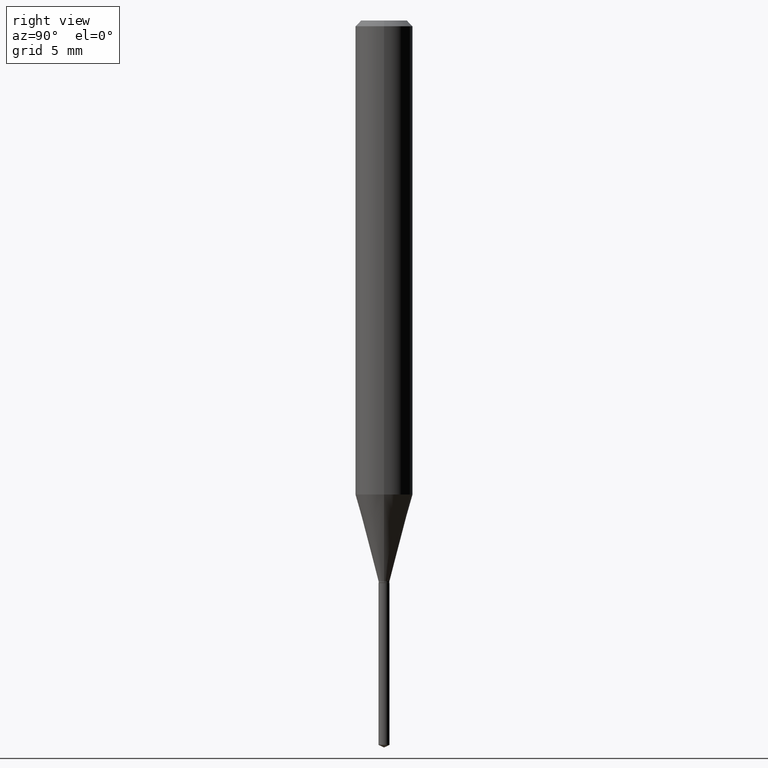
[diagram: clean part render]
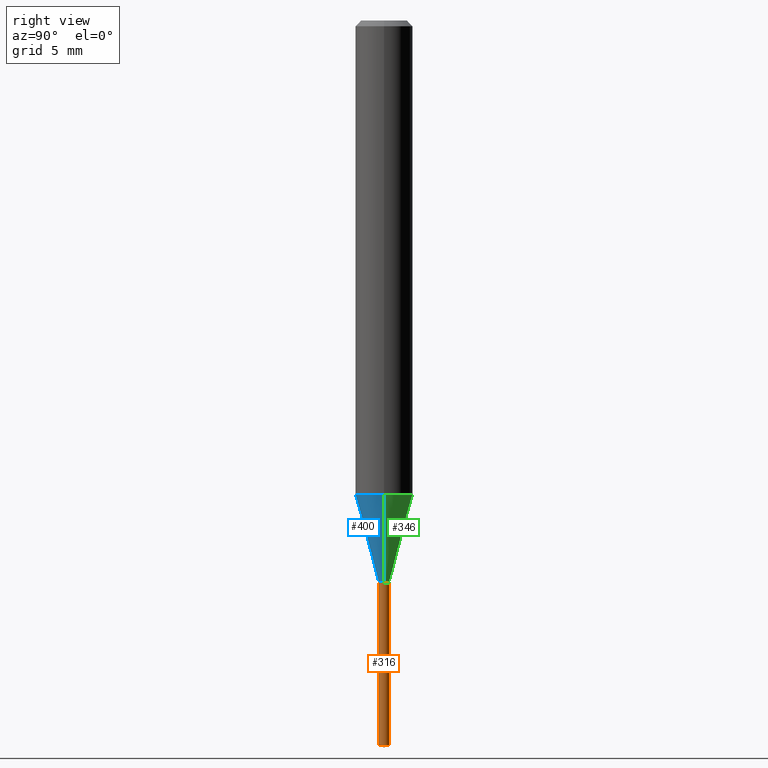
[diagram: same view with three faces highlighted in distinct colors, each labeled with its STEP entity id]
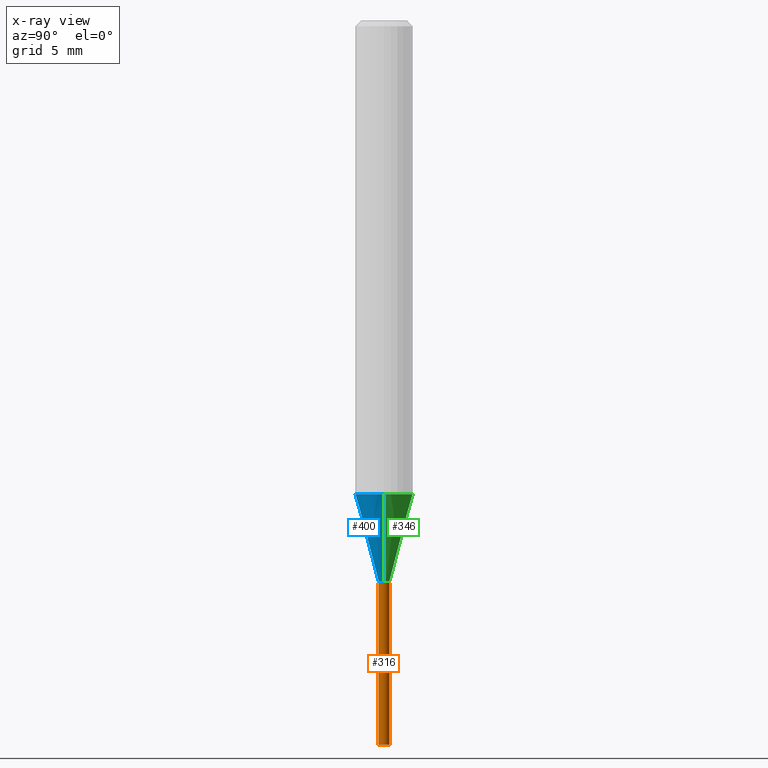
[diagram: x-ray of the same camera — body ghosted, the three highlighted faces saturated]
A machine part, right view with three faces highlighted in distinct colors.
The next image is the same camera in x-ray (body ghosted, the three faces saturated) — at least one of them is partly hidden behind the body in this view.
Their STEP definitions:

[orange] entity #316 — the highlighted cylindrical surface (edge-blend (fillet) strip) has radius 0.2845 mm, axis along (-0, 0, 1).
#19 = VECTOR ( 'NONE', #213, 39.37007874015748143 ) ;
#31 = EDGE_CURVE ( 'NONE', #335, #183, #285, .T. ) ;
#36 = ORIENTED_EDGE ( 'NONE', *, *, #144, .F. ) ;
#56 = CARTESIAN_POINT ( 'NONE',  ( -7.820918199004973468E-17, -0.01120000000000520753, -1.490877354228663965 ) ) ;
#119 = VERTEX_POINT ( 'NONE', #425 ) ;
#128 = CARTESIAN_POINT ( 'NONE',  ( -7.820918199005786981E-17, -0.01120000000000404179, -1.157499999999999973 ) ) ;
#130 = AXIS2_PLACEMENT_3D ( 'NONE', #258, #253, #408 ) ;
#144 = EDGE_CURVE ( 'NONE', #190, #335, #286, .T. ) ;
#155 = ORIENTED_EDGE ( 'NONE', *, *, #417, .T. ) ;
#160 = CARTESIAN_POINT ( 'NONE',  ( 2.830630143159295633E-29, -4.041389649710940900E-15, -1.157499999999999973 ) ) ;
#181 = ORIENTED_EDGE ( 'NONE', *, *, #31, .F. ) ;
#183 = VERTEX_POINT ( 'NONE', #283 ) ;
#184 = CARTESIAN_POINT ( 'NONE',  ( 7.958078640515952039E-17, 0.01119999999999595798, -1.157499999999999973 ) ) ;
#186 = AXIS2_PLACEMENT_3D ( 'NONE', #395, #311, #244 ) ;
#187 = CYLINDRICAL_SURFACE ( 'NONE', #130, 0.01119999999999999989 ) ;
#190 = VERTEX_POINT ( 'NONE', #56 ) ;
#198 = DIRECTION ( 'NONE',  ( -6.982962677686266711E-15, -1.000000000000000000, 0.000000000000000000 ) ) ;
#213 = DIRECTION ( 'NONE',  ( -2.445457056059012515E-29, 3.491498165692530705E-15, 1.000000000000000000 ) ) ;
#222 = EDGE_LOOP ( 'NONE', ( #155, #430, #181, #36 ) ) ;
#244 = DIRECTION ( 'NONE',  ( -6.982962677686266711E-15, -1.000000000000000000, 0.000000000000000000 ) ) ;
#250 = LINE ( 'NONE', #184, #261 ) ;
#253 = DIRECTION ( 'NONE',  ( -2.445457056059012515E-29, 3.491498165692530705E-15, 1.000000000000000000 ) ) ;
#258 = CARTESIAN_POINT ( 'NONE',  ( 2.830630143159295633E-29, -4.041389649710940900E-15, -1.157499999999999973 ) ) ;
#261 = VECTOR ( 'NONE', #404, 39.37007874015748143 ) ;
#283 = CARTESIAN_POINT ( 'NONE',  ( 7.958078640516774180E-17, 0.01119999999999595798, -1.157499999999999973 ) ) ;
#285 = CIRCLE ( 'NONE', #349, 0.01119999999999999989 ) ;
#286 = LINE ( 'NONE', #128, #19 ) ;
#301 = CARTESIAN_POINT ( 'NONE',  ( -7.820918199005786981E-17, -0.01120000000000404179, -1.157499999999999973 ) ) ;
#309 = EDGE_CURVE ( 'NONE', #119, #183, #250, .T. ) ;
#311 = DIRECTION ( 'NONE',  ( -2.445457056059012515E-29, 3.491498165692530705E-15, 1.000000000000000000 ) ) ;
#316 = ADVANCED_FACE ( 'NONE', ( #488 ), #187, .T. ) ;
#335 = VERTEX_POINT ( 'NONE', #301 ) ;
#349 = AXIS2_PLACEMENT_3D ( 'NONE', #160, #461, #198 ) ;
#395 = CARTESIAN_POINT ( 'NONE',  ( 3.645890146388067185E-29, -5.205376070483750124E-15, -1.490877354228663965 ) ) ;
#399 = CIRCLE ( 'NONE', #186, 0.01119999999999999989 ) ;
#404 = DIRECTION ( 'NONE',  ( -2.445457056059012515E-29, 3.491498165692530705E-15, 1.000000000000000000 ) ) ;
#408 = DIRECTION ( 'NONE',  ( -6.982962677686266711E-15, -1.000000000000000000, 0.000000000000000000 ) ) ;
#417 = EDGE_CURVE ( 'NONE', #190, #119, #399, .T. ) ;
#425 = CARTESIAN_POINT ( 'NONE',  ( 7.958078640516768017E-17, 0.01119999999999479398, -1.490877354228663965 ) ) ;
#430 = ORIENTED_EDGE ( 'NONE', *, *, #309, .T. ) ;
#461 = DIRECTION ( 'NONE',  ( -2.445457056059012515E-29, 3.491498165692530705E-15, 1.000000000000000000 ) ) ;
#488 = FACE_OUTER_BOUND ( 'NONE', #222, .T. ) ;

[blue] entity #400 — the highlighted conical surface has half-angle 15 deg.
#21 = CARTESIAN_POINT ( 'NONE',  ( -0.05905000000000013016, -2.986439169543490750E-15, -0.9755213688578289188 ) ) ;
#22 = CARTESIAN_POINT ( 'NONE',  ( 2.385607077308845080E-29, -3.406014655009830638E-15, -0.9755213688578289188 ) ) ;
#43 = CONICAL_SURFACE ( 'NONE', #487, 0.01119999999999999989, 0.2617993877991499074 ) ;
#47 = LINE ( 'NONE', #174, #254 ) ;
#49 = DIRECTION ( 'NONE',  ( 1.000000000000000000, -6.982962677686280910E-15, 0.000000000000000000 ) ) ;
#66 = ORIENTED_EDGE ( 'NONE', *, *, #380, .T. ) ;
#78 = EDGE_CURVE ( 'NONE', #367, #328, #345, .T. ) ;
#80 = CIRCLE ( 'NONE', #159, 0.01119999999999999989 ) ;
#85 = DIRECTION ( 'NONE',  ( -2.445468806185136597E-29, 3.491481338843145583E-15, 1.000000000000000000 ) ) ;
#86 = CARTESIAN_POINT ( 'NONE',  ( 0.01119999999999999989, -4.107727795148960403E-15, -1.154099999999999904 ) ) ;
#93 = CARTESIAN_POINT ( 'NONE',  ( 2.822315549218265928E-29, -4.029518613158873887E-15, -1.154099999999999904 ) ) ;
#107 = ORIENTED_EDGE ( 'NONE', *, *, #269, .F. ) ;
#112 = EDGE_CURVE ( 'NONE', #446, #414, #47, .T. ) ;
#159 = AXIS2_PLACEMENT_3D ( 'NONE', #235, #85, #279 ) ;
#161 = CARTESIAN_POINT ( 'NONE',  ( 0.01119999999999999989, -4.107727795148960403E-15, -1.154099999999999904 ) ) ;
#171 = DIRECTION ( 'NONE',  ( -2.445468806185136597E-29, 3.491481338843145583E-15, 1.000000000000000000 ) ) ;
#174 = CARTESIAN_POINT ( 'NONE',  ( -0.01119999999999999989, -3.949937826753742754E-15, -1.154099999999999904 ) ) ;
#180 = DIRECTION ( 'NONE',  ( 1.000000000000000000, -6.982962677686265133E-15, 0.000000000000000000 ) ) ;
#185 = ORIENTED_EDGE ( 'NONE', *, *, #112, .F. ) ;
#216 = VECTOR ( 'NONE', #374, 39.37007874015748854 ) ;
#235 = CARTESIAN_POINT ( 'NONE',  ( 2.822315549218265928E-29, -4.029518613158873887E-15, -1.154099999999999904 ) ) ;
#238 = FACE_OUTER_BOUND ( 'NONE', #453, .T. ) ;
#248 = CARTESIAN_POINT ( 'NONE',  ( 0.05905000000000013016, -3.818358601127205952E-15, -0.9755213688578289188 ) ) ;
#254 = VECTOR ( 'NONE', #314, 39.37007874015748854 ) ;
#267 = CIRCLE ( 'NONE', #337, 0.05905000000000013016 ) ;
#269 = EDGE_CURVE ( 'NONE', #414, #328, #267, .T. ) ;
#279 = DIRECTION ( 'NONE',  ( 1.000000000000000000, -6.982962677686280910E-15, 0.000000000000000000 ) ) ;
#314 = DIRECTION ( 'NONE',  ( -0.2588190451025211836, 5.211531920934547886E-15, 0.9659258262890679791 ) ) ;
#328 = VERTEX_POINT ( 'NONE', #248 ) ;
#337 = AXIS2_PLACEMENT_3D ( 'NONE', #22, #171, #180 ) ;
#345 = LINE ( 'NONE', #86, #216 ) ;
#367 = VERTEX_POINT ( 'NONE', #161 ) ;
#370 = ORIENTED_EDGE ( 'NONE', *, *, #78, .T. ) ;
#374 = DIRECTION ( 'NONE',  ( 0.2588190451025211836, 1.565188264969622559E-15, 0.9659258262890679791 ) ) ;
#380 = EDGE_CURVE ( 'NONE', #446, #367, #80, .T. ) ;
#384 = CARTESIAN_POINT ( 'NONE',  ( -0.01119999999999999989, -3.955000474695065508E-15, -1.154099999999999904 ) ) ;
#393 = DIRECTION ( 'NONE',  ( -2.445468806185136597E-29, 3.491481338843145583E-15, 1.000000000000000000 ) ) ;
#400 = ADVANCED_FACE ( 'NONE', ( #238 ), #43, .T. ) ;
#414 = VERTEX_POINT ( 'NONE', #21 ) ;
#446 = VERTEX_POINT ( 'NONE', #384 ) ;
#453 = EDGE_LOOP ( 'NONE', ( #185, #66, #370, #107 ) ) ;
#487 = AXIS2_PLACEMENT_3D ( 'NONE', #93, #393, #49 ) ;

[green] entity #346 — the highlighted conical surface has half-angle 15 deg.
#2 = ORIENTED_EDGE ( 'NONE', *, *, #112, .T. ) ;
#21 = CARTESIAN_POINT ( 'NONE',  ( -0.05905000000000013016, -2.986439169543490750E-15, -0.9755213688578289188 ) ) ;
#34 = ORIENTED_EDGE ( 'NONE', *, *, #470, .F. ) ;
#37 = AXIS2_PLACEMENT_3D ( 'NONE', #149, #143, #292 ) ;
#47 = LINE ( 'NONE', #174, #254 ) ;
#68 = CIRCLE ( 'NONE', #37, 0.01119999999999999989 ) ;
#72 = ORIENTED_EDGE ( 'NONE', *, *, #289, .T. ) ;
#78 = EDGE_CURVE ( 'NONE', #367, #328, #345, .T. ) ;
#86 = CARTESIAN_POINT ( 'NONE',  ( 0.01119999999999999989, -4.107727795148960403E-15, -1.154099999999999904 ) ) ;
#87 = DIRECTION ( 'NONE',  ( 1.000000000000000000, -6.982962677686265133E-15, 0.000000000000000000 ) ) ;
#99 = AXIS2_PLACEMENT_3D ( 'NONE', #364, #263, #131 ) ;
#112 = EDGE_CURVE ( 'NONE', #446, #414, #47, .T. ) ;
#131 = DIRECTION ( 'NONE',  ( 1.000000000000000000, -6.982962677686280910E-15, 0.000000000000000000 ) ) ;
#143 = DIRECTION ( 'NONE',  ( -2.445468806185136597E-29, 3.491481338843145583E-15, 1.000000000000000000 ) ) ;
#146 = FACE_OUTER_BOUND ( 'NONE', #220, .T. ) ;
#149 = CARTESIAN_POINT ( 'NONE',  ( 2.822315549218265928E-29, -4.029518613158873887E-15, -1.154099999999999904 ) ) ;
#161 = CARTESIAN_POINT ( 'NONE',  ( 0.01119999999999999989, -4.107727795148960403E-15, -1.154099999999999904 ) ) ;
#174 = CARTESIAN_POINT ( 'NONE',  ( -0.01119999999999999989, -3.949937826753742754E-15, -1.154099999999999904 ) ) ;
#216 = VECTOR ( 'NONE', #374, 39.37007874015748854 ) ;
#220 = EDGE_LOOP ( 'NONE', ( #72, #2, #34, #416 ) ) ;
#223 = CIRCLE ( 'NONE', #304, 0.05905000000000013016 ) ;
#248 = CARTESIAN_POINT ( 'NONE',  ( 0.05905000000000013016, -3.818358601127205952E-15, -0.9755213688578289188 ) ) ;
#254 = VECTOR ( 'NONE', #314, 39.37007874015748854 ) ;
#263 = DIRECTION ( 'NONE',  ( -2.445468806185136597E-29, 3.491481338843145583E-15, 1.000000000000000000 ) ) ;
#289 = EDGE_CURVE ( 'NONE', #367, #446, #68, .T. ) ;
#292 = DIRECTION ( 'NONE',  ( 1.000000000000000000, -6.982962677686280910E-15, 0.000000000000000000 ) ) ;
#304 = AXIS2_PLACEMENT_3D ( 'NONE', #352, #389, #87 ) ;
#314 = DIRECTION ( 'NONE',  ( -0.2588190451025211836, 5.211531920934547886E-15, 0.9659258262890679791 ) ) ;
#328 = VERTEX_POINT ( 'NONE', #248 ) ;
#345 = LINE ( 'NONE', #86, #216 ) ;
#346 = ADVANCED_FACE ( 'NONE', ( #146 ), #445, .T. ) ;
#352 = CARTESIAN_POINT ( 'NONE',  ( 2.385607077308845080E-29, -3.406014655009830638E-15, -0.9755213688578289188 ) ) ;
#364 = CARTESIAN_POINT ( 'NONE',  ( 2.822315549218265928E-29, -4.029518613158873887E-15, -1.154099999999999904 ) ) ;
#367 = VERTEX_POINT ( 'NONE', #161 ) ;
#374 = DIRECTION ( 'NONE',  ( 0.2588190451025211836, 1.565188264969622559E-15, 0.9659258262890679791 ) ) ;
#384 = CARTESIAN_POINT ( 'NONE',  ( -0.01119999999999999989, -3.955000474695065508E-15, -1.154099999999999904 ) ) ;
#389 = DIRECTION ( 'NONE',  ( -2.445468806185136597E-29, 3.491481338843145583E-15, 1.000000000000000000 ) ) ;
#414 = VERTEX_POINT ( 'NONE', #21 ) ;
#416 = ORIENTED_EDGE ( 'NONE', *, *, #78, .F. ) ;
#445 = CONICAL_SURFACE ( 'NONE', #99, 0.01119999999999999989, 0.2617993877991499074 ) ;
#446 = VERTEX_POINT ( 'NONE', #384 ) ;
#470 = EDGE_CURVE ( 'NONE', #328, #414, #223, .T. ) ;